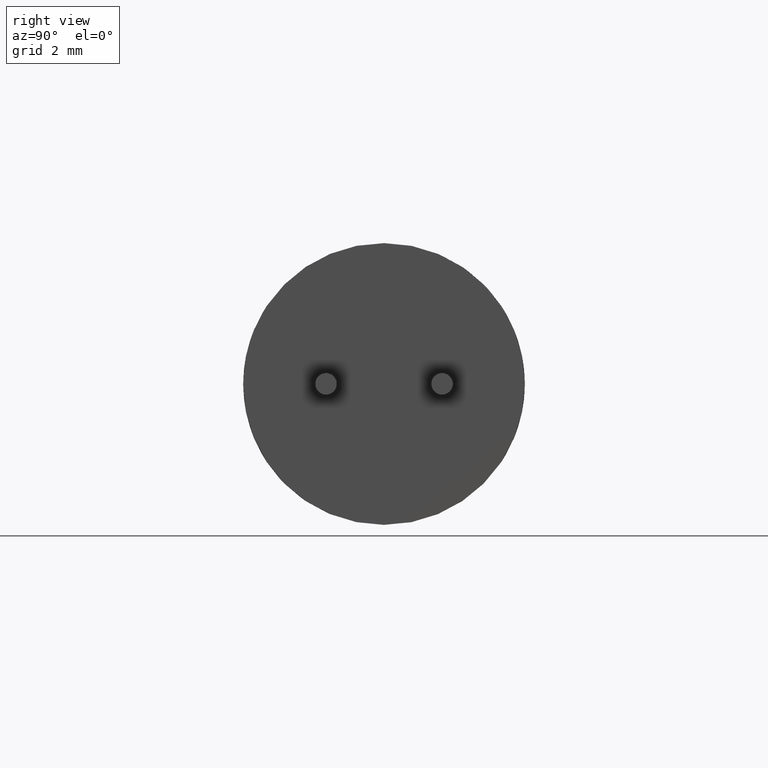
[diagram: clean part render]
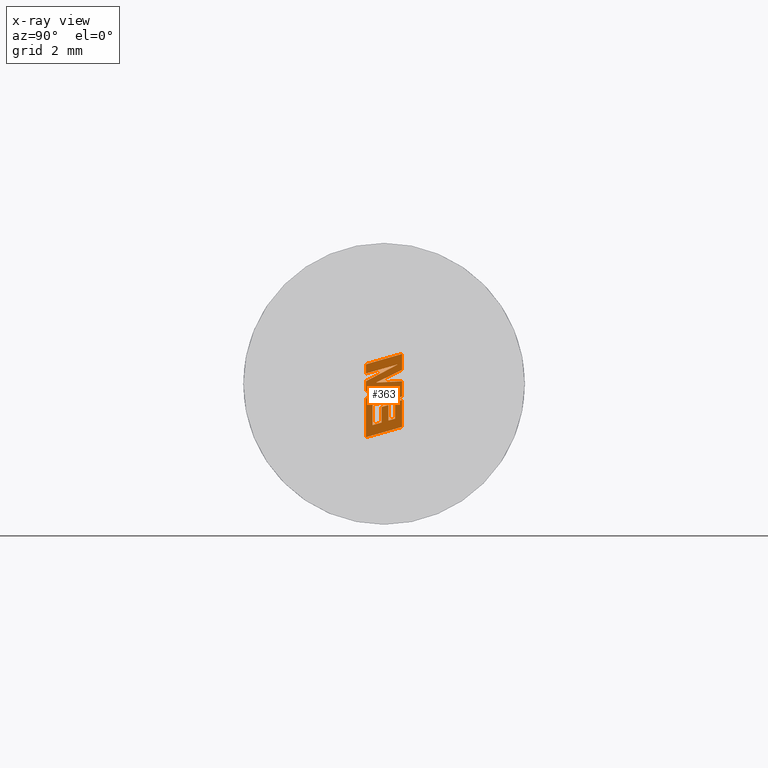
[diagram: x-ray — body ghosted, one internal face saturated and labeled with its STEP entity id]
A machine part, right view, then the same camera in x-ray: the body is ghosted and one INTERNAL B-rep face — a face not visible from any outside direction — is saturated and labeled: STEP entity #363.
In plain terms, the highlighted planar face has unit normal (1, 0, 0).
Its self-contained STEP definition (entity closure, byte-faithful):
#25 = EDGE_CURVE ( 'NONE', #1906, #2280, #848, .T. ) ;
#34 = VERTEX_POINT ( 'NONE', #1390 ) ;
#66 = ORIENTED_EDGE ( 'NONE', *, *, #2860, .F. ) ;
#163 = CARTESIAN_POINT ( 'NONE',  ( 0.0000000000000000000, 0.5414548429500271000, -0.4915687750192731000 ) ) ;
#194 = VERTEX_POINT ( 'NONE', #2139 ) ;
#210 = VERTEX_POINT ( 'NONE', #2989 ) ;
#217 = VERTEX_POINT ( 'NONE', #1922 ) ;
#231 = DIRECTION ( 'NONE',  ( -0.0000000000000000000, -0.9610029908221278100, -0.2765379750249960500 ) ) ;
#260 = VECTOR ( 'NONE', #1240, 1000.000000000000100 ) ;
#280 = CARTESIAN_POINT ( 'NONE',  ( 0.0000000000000000000, 0.4264677950446046900, 0.5938994064014907500 ) ) ;
#320 = VECTOR ( 'NONE', #2749, 1000.000000000000000 ) ;
#349 = VERTEX_POINT ( 'NONE', #1795 ) ;
#363 = ADVANCED_FACE ( 'NONE', ( #2995 ), #1543, .T. ) ;
#368 = CARTESIAN_POINT ( 'NONE',  ( 0.0000000000000000000, -0.3416212795958141800, -0.6366215022952079700 ) ) ;
#381 = VECTOR ( 'NONE', #2018, 1000.000000000000000 ) ;
#427 = CARTESIAN_POINT ( 'NONE',  ( 0.0000000000000000000, 0.5414548429500271000, 0.4261078855165140700 ) ) ;
#442 = EDGE_CURVE ( 'NONE', #725, #1906, #2577, .T. ) ;
#494 = DIRECTION ( 'NONE',  ( 0.0000000000000000000, 0.9611638845408937400, 0.2759782365590799400 ) ) ;
#504 = EDGE_CURVE ( 'NONE', #2797, #34, #1524, .T. ) ;
#509 = CARTESIAN_POINT ( 'NONE',  ( 0.0000000000000000000, 0.3338733282321779700, -1.047394219663360100 ) ) ;
#532 = VERTEX_POINT ( 'NONE', #2724 ) ;
#546 = DIRECTION ( 'NONE',  ( 0.0000000000000000000, 0.0000000000000000000, -1.000000000000000000 ) ) ;
#569 = DIRECTION ( 'NONE',  ( 0.0000000000000000000, 0.9615454294334484500, 0.2746459304916881200 ) ) ;
#582 = EDGE_CURVE ( 'NONE', #2280, #1493, #2223, .T. ) ;
#605 = LINE ( 'NONE', #280, #2930 ) ;
#607 = DIRECTION ( 'NONE',  ( 0.0000000000000000000, -0.9611542233438690200, -0.2760118818968558800 ) ) ;
#611 = CARTESIAN_POINT ( 'NONE',  ( 0.0000000000000000000, -0.5490999999999991400, 0.5908752639530311400 ) ) ;
#645 = ORIENTED_EDGE ( 'NONE', *, *, #1707, .F. ) ;
#661 = ORIENTED_EDGE ( 'NONE', *, *, #693, .F. ) ;
#693 = EDGE_CURVE ( 'NONE', #2049, #808, #1314, .T. ) ;
#694 = CARTESIAN_POINT ( 'NONE',  ( 0.0000000000000000000, -0.5490999999999994800, -0.4361891673054104100 ) ) ;
#698 = DIRECTION ( 'NONE',  ( 0.0000000000000000000, 0.0000000000000000000, -1.000000000000000000 ) ) ;
#725 = VERTEX_POINT ( 'NONE', #1757 ) ;
#740 = DIRECTION ( 'NONE',  ( 0.0000000000000000000, 4.315951119954651200E-016, 1.000000000000000000 ) ) ;
#760 = VECTOR ( 'NONE', #569, 1000.000000000000000 ) ;
#774 = ORIENTED_EDGE ( 'NONE', *, *, #2692, .F. ) ;
#777 = EDGE_CURVE ( 'NONE', #3266, #532, #1276, .T. ) ;
#781 = CARTESIAN_POINT ( 'NONE',  ( 0.0000000000000000000, -0.5490999999999993700, 0.3137484207548385000 ) ) ;
#808 = VERTEX_POINT ( 'NONE', #1617 ) ;
#834 = CARTESIAN_POINT ( 'NONE',  ( 0.0000000000000000000, 0.5414548429500268800, -1.297234145964016400 ) ) ;
#837 = AXIS2_PLACEMENT_3D ( 'NONE', #2038, #963, #698 ) ;
#848 = LINE ( 'NONE', #2981, #1687 ) ;
#858 = VERTEX_POINT ( 'NONE', #2469 ) ;
#868 = VECTOR ( 'NONE', #3317, 1000.000000000000100 ) ;
#874 = CARTESIAN_POINT ( 'NONE',  ( 0.0000000000000000000, -0.5490999999999994800, -0.4361891673054104100 ) ) ;
#932 = VECTOR ( 'NONE', #3350, 1000.000000000000200 ) ;
#963 = DIRECTION ( 'NONE',  ( 1.000000000000000000, 0.0000000000000000000, 0.0000000000000000000 ) ) ;
#985 = ORIENTED_EDGE ( 'NONE', *, *, #442, .F. ) ;
#993 = ORIENTED_EDGE ( 'NONE', *, *, #3510, .F. ) ;
#1016 = ORIENTED_EDGE ( 'NONE', *, *, #2160, .F. ) ;
#1034 = CARTESIAN_POINT ( 'NONE',  ( 0.0000000000000000000, 0.5414548429500271000, -0.3827924933494475400 ) ) ;
#1067 = EDGE_CURVE ( 'NONE', #858, #2259, #1591, .T. ) ;
#1076 = CARTESIAN_POINT ( 'NONE',  ( 0.0000000000000000000, 0.5414548429500271000, 0.08163623181785956100 ) ) ;
#1138 = DIRECTION ( 'NONE',  ( -0.0000000000000000000, -0.9984327301130245800, -0.05596501978068179500 ) ) ;
#1193 = VECTOR ( 'NONE', #1138, 1000.000000000000200 ) ;
#1205 = LINE ( 'NONE', #368, #381 ) ;
#1231 = CARTESIAN_POINT ( 'NONE',  ( 0.0000000000000000000, -0.5490999999999993700, 0.07889325292326958300 ) ) ;
#1240 = DIRECTION ( 'NONE',  ( -0.0000000000000000000, -0.8958676361826800600, -0.4443210308329521600 ) ) ;
#1276 = LINE ( 'NONE', #1625, #2773 ) ;
#1281 = CARTESIAN_POINT ( 'NONE',  ( 0.0000000000000000000, -0.3416212795958141800, -1.241164820681738100 ) ) ;
#1314 = LINE ( 'NONE', #2476, #320 ) ;
#1353 = LINE ( 'NONE', #1680, #1193 ) ;
#1378 = CARTESIAN_POINT ( 'NONE',  ( 0.0000000000000000000, -0.07057588075193321800, -1.163936446088685200 ) ) ;
#1390 = CARTESIAN_POINT ( 'NONE',  ( 0.0000000000000000000, -0.5490999999999991400, 0.5908752639530311400 ) ) ;
#1404 = VECTOR ( 'NONE', #1875, 1000.000000000000100 ) ;
#1417 = VERTEX_POINT ( 'NONE', #1966 ) ;
#1470 = ORIENTED_EDGE ( 'NONE', *, *, #3156, .F. ) ;
#1485 = CARTESIAN_POINT ( 'NONE',  ( 0.0000000000000000000, 0.5414548429500271000, 0.9044178224692240900 ) ) ;
#1493 = VERTEX_POINT ( 'NONE', #163 ) ;
#1499 = EDGE_CURVE ( 'NONE', #808, #858, #1620, .T. ) ;
#1524 = LINE ( 'NONE', #781, #2187 ) ;
#1531 = EDGE_CURVE ( 'NONE', #349, #725, #3143, .T. ) ;
#1543 = PLANE ( 'NONE',  #837 ) ;
#1590 = CARTESIAN_POINT ( 'NONE',  ( 0.0000000000000000000, 0.5414548429500271000, 0.08163623181785956100 ) ) ;
#1591 = LINE ( 'NONE', #3336, #868 ) ;
#1600 = LINE ( 'NONE', #694, #2144 ) ;
#1604 = VECTOR ( 'NONE', #546, 1000.000000000000000 ) ;
#1617 = CARTESIAN_POINT ( 'NONE',  ( 0.0000000000000000000, 0.5414548429500271000, 0.4261078855165140700 ) ) ;
#1620 = LINE ( 'NONE', #427, #260 ) ;
#1625 = CARTESIAN_POINT ( 'NONE',  ( 0.0000000000000000000, -0.5490999999999993700, 0.07889325292326958300 ) ) ;
#1657 = ORIENTED_EDGE ( 'NONE', *, *, #25, .F. ) ;
#1674 = VERTEX_POINT ( 'NONE', #1281 ) ;
#1680 = CARTESIAN_POINT ( 'NONE',  ( 0.0000000000000000000, 0.4217923116559351100, -0.1574176150559631600 ) ) ;
#1687 = VECTOR ( 'NONE', #2197, 1000.000000000000000 ) ;
#1707 = EDGE_CURVE ( 'NONE', #194, #2838, #2380, .T. ) ;
#1754 = CARTESIAN_POINT ( 'NONE',  ( 0.0000000000000000000, 0.1310302998732833000, -0.6383391621476814900 ) ) ;
#1757 = CARTESIAN_POINT ( 'NONE',  ( 0.0000000000000000000, 0.1310302998732833000, -1.106418052542466900 ) ) ;
#1770 = ORIENTED_EDGE ( 'NONE', *, *, #582, .F. ) ;
#1795 = CARTESIAN_POINT ( 'NONE',  ( 0.0000000000000000000, 0.1310302998732833000, -0.6383391621476814900 ) ) ;
#1830 = DIRECTION ( 'NONE',  ( 0.0000000000000000000, 0.0000000000000000000, 1.000000000000000000 ) ) ;
#1851 = CARTESIAN_POINT ( 'NONE',  ( 0.0000000000000000000, 0.3338733282321779700, -0.5505262889851400000 ) ) ;
#1875 = DIRECTION ( 'NONE',  ( 0.0000000000000000000, 0.9619530280415487000, 0.2732148821746273600 ) ) ;
#1906 = VERTEX_POINT ( 'NONE', #509 ) ;
#1912 = EDGE_CURVE ( 'NONE', #217, #194, #2759, .T. ) ;
#1922 = CARTESIAN_POINT ( 'NONE',  ( 0.0000000000000000000, 0.5414548429500268800, -1.297234145964016400 ) ) ;
#1945 = ORIENTED_EDGE ( 'NONE', *, *, #1067, .F. ) ;
#1953 = ORIENTED_EDGE ( 'NONE', *, *, #2827, .F. ) ;
#1966 = CARTESIAN_POINT ( 'NONE',  ( 0.0000000000000000000, 0.5414548429500271000, -0.3827924933494475400 ) ) ;
#1982 = CARTESIAN_POINT ( 'NONE',  ( 0.0000000000000000000, -0.5490999999999995900, -0.2118389153478572000 ) ) ;
#2014 = ORIENTED_EDGE ( 'NONE', *, *, #3320, .F. ) ;
#2018 = DIRECTION ( 'NONE',  ( 0.0000000000000000000, 0.0000000000000000000, -1.000000000000000000 ) ) ;
#2022 = CARTESIAN_POINT ( 'NONE',  ( 0.0000000000000000000, -0.07057588075193321800, -1.163936446088685200 ) ) ;
#2038 = CARTESIAN_POINT ( 'NONE',  ( 0.0000000000000000000, -0.1495759969184450300, 0.05588772688184910600 ) ) ;
#2049 = VERTEX_POINT ( 'NONE', #1485 ) ;
#2062 = LINE ( 'NONE', #1076, #1604 ) ;
#2076 = LINE ( 'NONE', #2022, #3210 ) ;
#2078 = VERTEX_POINT ( 'NONE', #3138 ) ;
#2083 = ORIENTED_EDGE ( 'NONE', *, *, #3219, .F. ) ;
#2123 = CARTESIAN_POINT ( 'NONE',  ( 0.0000000000000000000, 0.1310302998732833000, -1.106418052542466900 ) ) ;
#2139 = CARTESIAN_POINT ( 'NONE',  ( 0.0000000000000000000, -0.5491000000000000300, -1.611051928846361600 ) ) ;
#2140 = EDGE_CURVE ( 'NONE', #1417, #2078, #2353, .T. ) ;
#2142 = CARTESIAN_POINT ( 'NONE',  ( 0.0000000000000000000, 0.5414548429500271000, -0.4915687750192731000 ) ) ;
#2144 = VECTOR ( 'NONE', #494, 1000.000000000000000 ) ;
#2160 = EDGE_CURVE ( 'NONE', #1493, #217, #2263, .T. ) ;
#2187 = VECTOR ( 'NONE', #2939, 1000.000000000000000 ) ;
#2197 = DIRECTION ( 'NONE',  ( 0.0000000000000000000, 0.0000000000000000000, 1.000000000000000000 ) ) ;
#2223 = LINE ( 'NONE', #1851, #1404 ) ;
#2231 = DIRECTION ( 'NONE',  ( 0.0000000000000000000, 0.9610674221107072800, 0.2763139702539115200 ) ) ;
#2256 = CARTESIAN_POINT ( 'NONE',  ( 0.0000000000000000000, -0.07057588075193321800, -0.6959238746071985100 ) ) ;
#2259 = VERTEX_POINT ( 'NONE', #1590 ) ;
#2263 = LINE ( 'NONE', #2142, #3515 ) ;
#2280 = VERTEX_POINT ( 'NONE', #2980 ) ;
#2313 = VECTOR ( 'NONE', #3473, 999.9999999999998900 ) ;
#2353 = LINE ( 'NONE', #1034, #2689 ) ;
#2380 = LINE ( 'NONE', #2637, #3223 ) ;
#2439 = ORIENTED_EDGE ( 'NONE', *, *, #2872, .F. ) ;
#2469 = CARTESIAN_POINT ( 'NONE',  ( 0.0000000000000000000, -0.2376515487640615000, 0.03969661100055883000 ) ) ;
#2476 = CARTESIAN_POINT ( 'NONE',  ( 0.0000000000000000000, 0.5414548429500271000, 0.9044178224692240900 ) ) ;
#2549 = EDGE_LOOP ( 'NONE', ( #661, #66, #3451, #993, #3270, #2083, #1470, #3438, #645, #3272, #1016, #1770, #1657, #985, #3171, #1953, #774, #2439, #2014, #2794, #3242, #1945, #2715 ) ) ;
#2577 = LINE ( 'NONE', #2123, #2313 ) ;
#2620 = VERTEX_POINT ( 'NONE', #3328 ) ;
#2637 = CARTESIAN_POINT ( 'NONE',  ( 0.0000000000000000000, -0.5490999999999995900, -0.6303046266686518400 ) ) ;
#2689 = VECTOR ( 'NONE', #2923, 1000.000000000000100 ) ;
#2692 = EDGE_CURVE ( 'NONE', #2964, #3263, #2076, .T. ) ;
#2700 = LINE ( 'NONE', #3313, #760 ) ;
#2713 = DIRECTION ( 'NONE',  ( 0.0000000000000000000, 0.8843386665637612600, 0.4668459304955208100 ) ) ;
#2715 = ORIENTED_EDGE ( 'NONE', *, *, #1499, .F. ) ;
#2724 = CARTESIAN_POINT ( 'NONE',  ( 0.0000000000000000000, 0.4264677950446046900, 0.5938994064014907500 ) ) ;
#2749 = DIRECTION ( 'NONE',  ( 0.0000000000000000000, -1.751568950410756100E-016, -1.000000000000000000 ) ) ;
#2759 = LINE ( 'NONE', #834, #3315 ) ;
#2773 = VECTOR ( 'NONE', #2713, 1000.000000000000100 ) ;
#2782 = LINE ( 'NONE', #3334, #932 ) ;
#2794 = ORIENTED_EDGE ( 'NONE', *, *, #2140, .F. ) ;
#2797 = VERTEX_POINT ( 'NONE', #3236 ) ;
#2827 = EDGE_CURVE ( 'NONE', #3263, #349, #2700, .T. ) ;
#2838 = VERTEX_POINT ( 'NONE', #874 ) ;
#2858 = DIRECTION ( 'NONE',  ( 0.0000000000000000000, 0.0000000000000000000, -1.000000000000000000 ) ) ;
#2860 = EDGE_CURVE ( 'NONE', #34, #2049, #3253, .T. ) ;
#2872 = EDGE_CURVE ( 'NONE', #1674, #2964, #2782, .T. ) ;
#2923 = DIRECTION ( 'NONE',  ( -0.0000000000000000000, -0.9610853065513833600, -0.2762517575166417700 ) ) ;
#2930 = VECTOR ( 'NONE', #607, 1000.000000000000200 ) ;
#2939 = DIRECTION ( 'NONE',  ( 0.0000000000000000000, 6.046277037407946300E-016, 1.000000000000000000 ) ) ;
#2964 = VERTEX_POINT ( 'NONE', #1378 ) ;
#2980 = CARTESIAN_POINT ( 'NONE',  ( 0.0000000000000000000, 0.3338733282321779700, -0.5505262889851400000 ) ) ;
#2981 = CARTESIAN_POINT ( 'NONE',  ( 0.0000000000000000000, 0.3338733282321779700, -1.047394219663360100 ) ) ;
#2989 = CARTESIAN_POINT ( 'NONE',  ( 0.0000000000000000000, 0.4217923116559351100, -0.1574176150559631600 ) ) ;
#2995 = FACE_OUTER_BOUND ( 'NONE', #2549, .T. ) ;
#3015 = VECTOR ( 'NONE', #2858, 1000.000000000000000 ) ;
#3060 = DIRECTION ( 'NONE',  ( 0.0000000000000000000, 5.763330829342531100E-016, 1.000000000000000000 ) ) ;
#3078 = EDGE_CURVE ( 'NONE', #2259, #1417, #2062, .T. ) ;
#3138 = CARTESIAN_POINT ( 'NONE',  ( 0.0000000000000000000, -0.3416212795958141800, -0.6366215022952079700 ) ) ;
#3143 = LINE ( 'NONE', #1754, #3015 ) ;
#3156 = EDGE_CURVE ( 'NONE', #210, #2620, #1353, .T. ) ;
#3171 = ORIENTED_EDGE ( 'NONE', *, *, #1531, .F. ) ;
#3199 = LINE ( 'NONE', #1982, #3520 ) ;
#3202 = VECTOR ( 'NONE', #2231, 1000.000000000000100 ) ;
#3210 = VECTOR ( 'NONE', #1830, 1000.000000000000000 ) ;
#3219 = EDGE_CURVE ( 'NONE', #2620, #3266, #3199, .T. ) ;
#3223 = VECTOR ( 'NONE', #740, 1000.000000000000000 ) ;
#3236 = CARTESIAN_POINT ( 'NONE',  ( 0.0000000000000000000, -0.5490999999999993700, 0.3137484207548385000 ) ) ;
#3242 = ORIENTED_EDGE ( 'NONE', *, *, #3078, .F. ) ;
#3253 = LINE ( 'NONE', #611, #3202 ) ;
#3263 = VERTEX_POINT ( 'NONE', #2256 ) ;
#3266 = VERTEX_POINT ( 'NONE', #1231 ) ;
#3270 = ORIENTED_EDGE ( 'NONE', *, *, #777, .F. ) ;
#3272 = ORIENTED_EDGE ( 'NONE', *, *, #1912, .F. ) ;
#3313 = CARTESIAN_POINT ( 'NONE',  ( 0.0000000000000000000, -0.07057588075193321800, -0.6959238746071985100 ) ) ;
#3315 = VECTOR ( 'NONE', #231, 1000.000000000000100 ) ;
#3317 = DIRECTION ( 'NONE',  ( 0.0000000000000000000, 0.9985542843760946100, 0.05375259206908559300 ) ) ;
#3320 = EDGE_CURVE ( 'NONE', #2078, #1674, #1205, .T. ) ;
#3328 = CARTESIAN_POINT ( 'NONE',  ( 0.0000000000000000000, -0.5490999999999995900, -0.2118389153478572000 ) ) ;
#3334 = CARTESIAN_POINT ( 'NONE',  ( 0.0000000000000000000, -0.3416212795958141800, -1.241164820681738100 ) ) ;
#3336 = CARTESIAN_POINT ( 'NONE',  ( 0.0000000000000000000, -0.2376515487640615000, 0.03969661100055883000 ) ) ;
#3350 = DIRECTION ( 'NONE',  ( 0.0000000000000000000, 0.9617234872620592500, 0.2740217765954078300 ) ) ;
#3380 = EDGE_CURVE ( 'NONE', #2838, #210, #1600, .T. ) ;
#3438 = ORIENTED_EDGE ( 'NONE', *, *, #3380, .F. ) ;
#3451 = ORIENTED_EDGE ( 'NONE', *, *, #504, .F. ) ;
#3463 = DIRECTION ( 'NONE',  ( 0.0000000000000000000, -1.039876932102562300E-016, -1.000000000000000000 ) ) ;
#3473 = DIRECTION ( 'NONE',  ( 0.0000000000000000000, 0.9601763114327605000, 0.2793947940878260300 ) ) ;
#3510 = EDGE_CURVE ( 'NONE', #532, #2797, #605, .T. ) ;
#3515 = VECTOR ( 'NONE', #3463, 1000.000000000000000 ) ;
#3520 = VECTOR ( 'NONE', #3060, 1000.000000000000000 ) ;